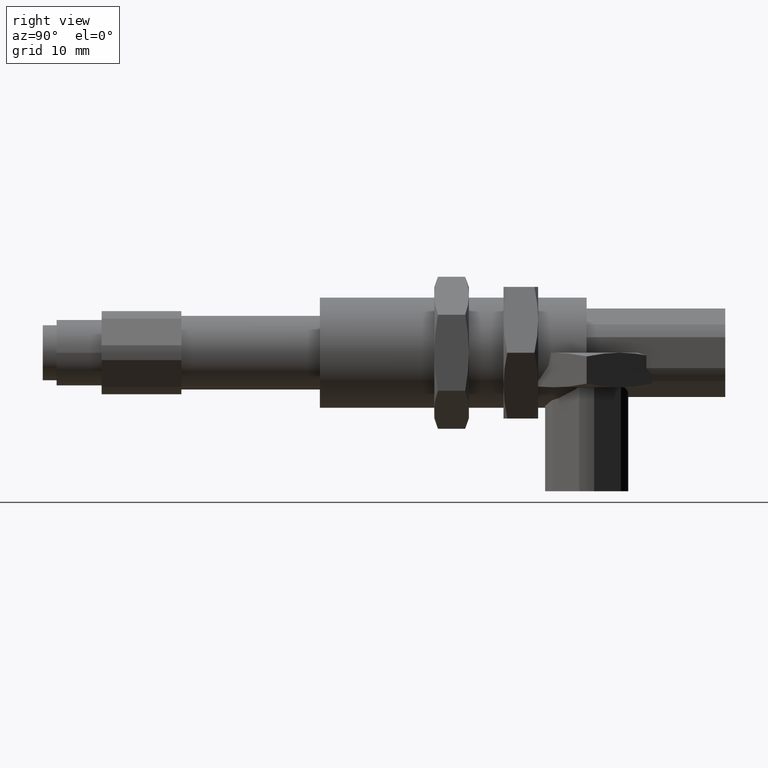
[diagram: clean part render]
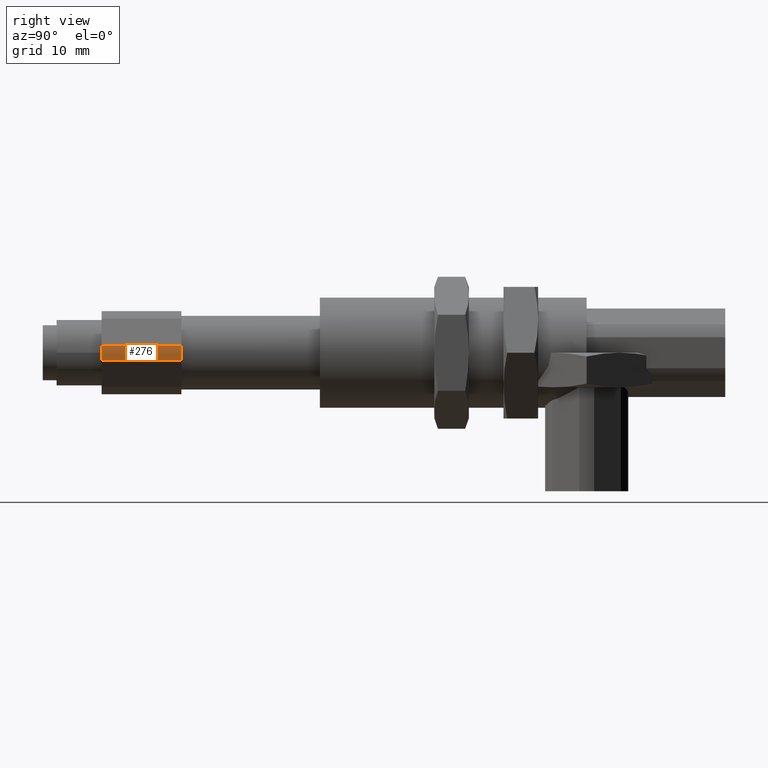
[diagram: same view with one face highlighted and labeled with its STEP entity id]
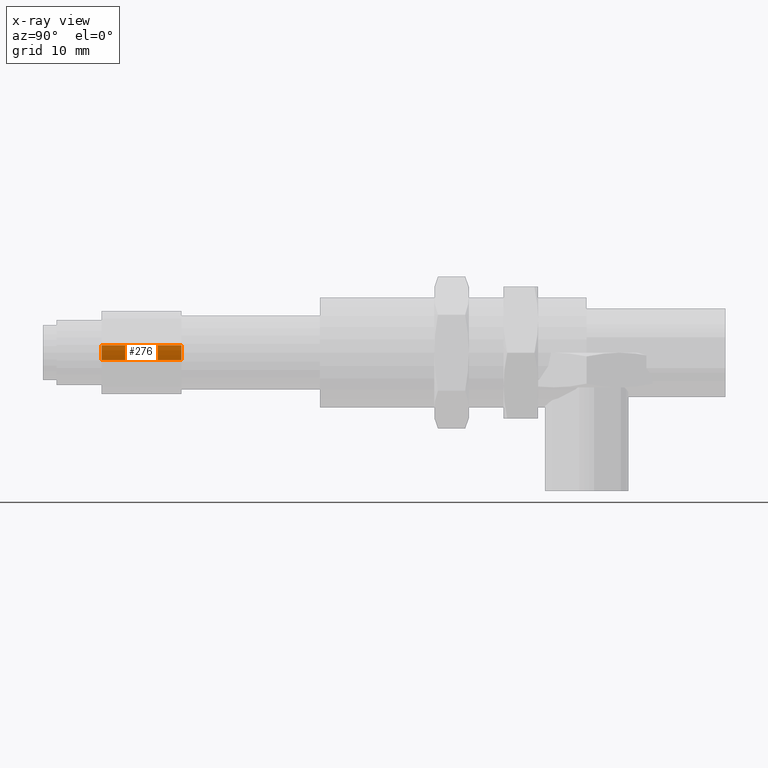
[diagram: x-ray of the same camera — body ghosted, the highlighted face saturated]
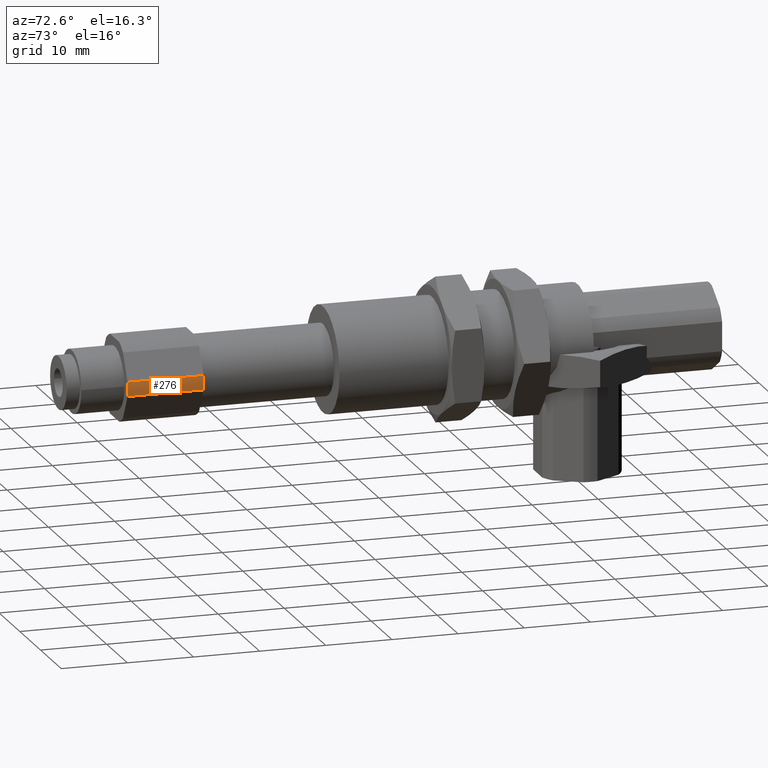
[diagram: same view with one face highlighted and labeled with its STEP entity id]
A machine part, right view. The second image highlights one B-rep face of the part: STEP entity #276.
The next image is the same camera in x-ray: the body ghosted, the highlighted face saturated — about 0% of this face is hidden behind the body in this view.
A second angle (auxiliary view) of the same face is appended — the face is thin or edge-on in the first view.
In plain terms, the highlighted cylindrical surface (partial cylindrical patch) has radius 6.4 mm, axis along (0, -1, -0).
Its self-contained STEP definition (entity closure, byte-faithful):
#276 = ADVANCED_FACE( 'NONE', ( #426 ), #427, .T. );
#426 = FACE_OUTER_BOUND( '', #583, .T. );
#427 = CYLINDRICAL_SURFACE( '', #584, 6.40000000000000 );
#583 = EDGE_LOOP( '', ( #916, #917, #918, #919 ) );
#584 = AXIS2_PLACEMENT_3D( '', #920, #921, #922 );
#916 = ORIENTED_EDGE( '', *, *, #1203, .T. );
#917 = ORIENTED_EDGE( '', *, *, #1222, .T. );
#918 = ORIENTED_EDGE( '', *, *, #1210, .T. );
#919 = ORIENTED_EDGE( '', *, *, #1189, .T. );
#920 = CARTESIAN_POINT( '', ( 0.000000000000000, 0.000000000000000, 0.000000000000000 ) );
#921 = DIRECTION( '', ( -0.000000000000000, -0.000000000000000, -1.00000000000000 ) );
#922 = DIRECTION( '', ( 1.00000000000000, 0.000000000000000, 0.000000000000000 ) );
#1189 = EDGE_CURVE( 'NONE', #1371, #1372, #1373, .T. );
#1203 = EDGE_CURVE( 'NONE', #1372, #1397, #1399, .T. );
#1210 = EDGE_CURVE( 'NONE', #1409, #1371, #1410, .T. );
#1222 = EDGE_CURVE( 'NONE', #1397, #1409, #1430, .T. );
#1371 = VERTEX_POINT( 'NONE', #1715 );
#1372 = VERTEX_POINT( 'NONE', #1716 );
#1373 = LINE( '', #1717, #1718 );
#1397 = VERTEX_POINT( 'NONE', #1749 );
#1399 = CIRCLE( '', #1752, 6.40000000000000 );
#1409 = VERTEX_POINT( 'NONE', #1766 );
#1410 = CIRCLE( '', #1767, 6.40000000000000 );
#1430 = LINE( '', #1793, #1794 );
#1715 = CARTESIAN_POINT( '', ( 6.30970529527264, -1.07126984780140, 0.000000000000000 ) );
#1716 = CARTESIAN_POINT( '', ( 6.30970529527264, -1.07126984780140, -11.5000000000000 ) );
#1717 = CARTESIAN_POINT( '', ( 6.30970529527264, -1.07126984780139, 0.000000000000000 ) );
#1718 = VECTOR( '', #1961, 1000.00000000000 );
#1749 = CARTESIAN_POINT( '', ( 6.30970529527264, 1.07126984780141, -11.5000000000000 ) );
#1752 = AXIS2_PLACEMENT_3D( '', #1985, #1986, #1987 );
#1766 = CARTESIAN_POINT( '', ( 6.30970529527264, 1.07126984780141, 0.000000000000000 ) );
#1767 = AXIS2_PLACEMENT_3D( '', #1998, #1999, #2000 );
#1793 = CARTESIAN_POINT( '', ( 6.30970529527264, 1.07126984780141, 0.000000000000000 ) );
#1794 = VECTOR( '', #2022, 1000.00000000000 );
#1961 = DIRECTION( '', ( 0.000000000000000, 0.000000000000000, -1.00000000000000 ) );
#1985 = CARTESIAN_POINT( '', ( 0.000000000000000, 0.000000000000000, -11.5000000000000 ) );
#1986 = DIRECTION( '', ( 0.000000000000000, 0.000000000000000, 1.00000000000000 ) );
#1987 = DIRECTION( '', ( 1.00000000000000, 0.000000000000000, 0.000000000000000 ) );
#1998 = CARTESIAN_POINT( '', ( 0.000000000000000, 0.000000000000000, 0.000000000000000 ) );
#1999 = DIRECTION( '', ( 0.000000000000000, 0.000000000000000, -1.00000000000000 ) );
#2000 = DIRECTION( '', ( 1.00000000000000, 0.000000000000000, 0.000000000000000 ) );
#2022 = DIRECTION( '', ( 0.000000000000000, 0.000000000000000, 1.00000000000000 ) );